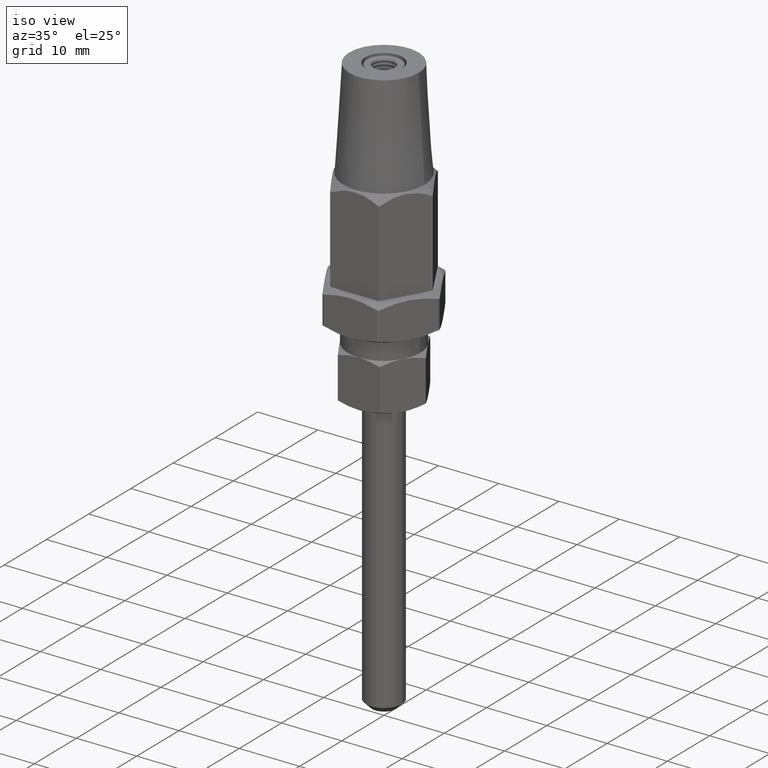
[diagram: clean part render]
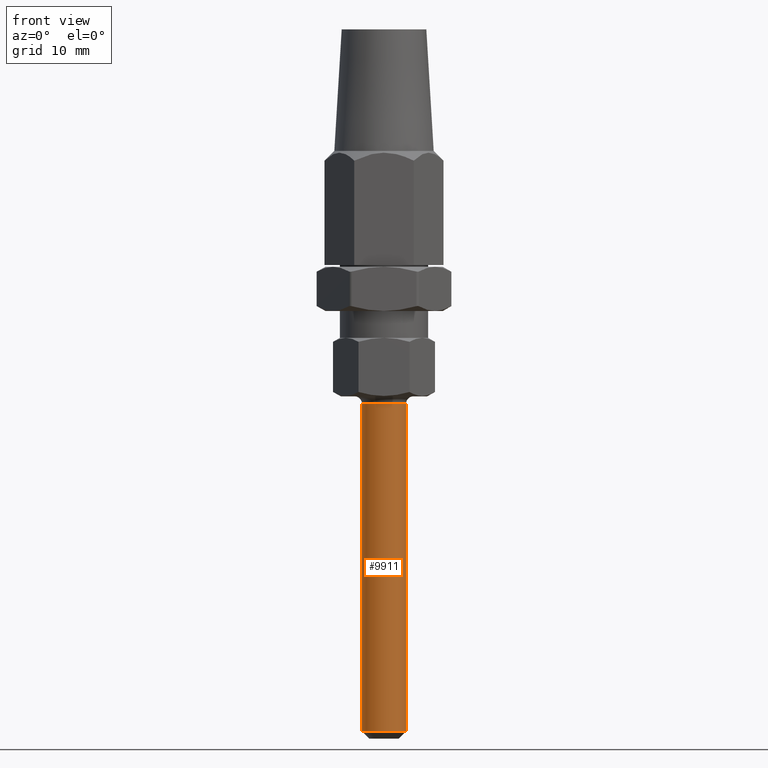
[diagram: tour spotlight — one face highlighted and labeled with its STEP entity id]
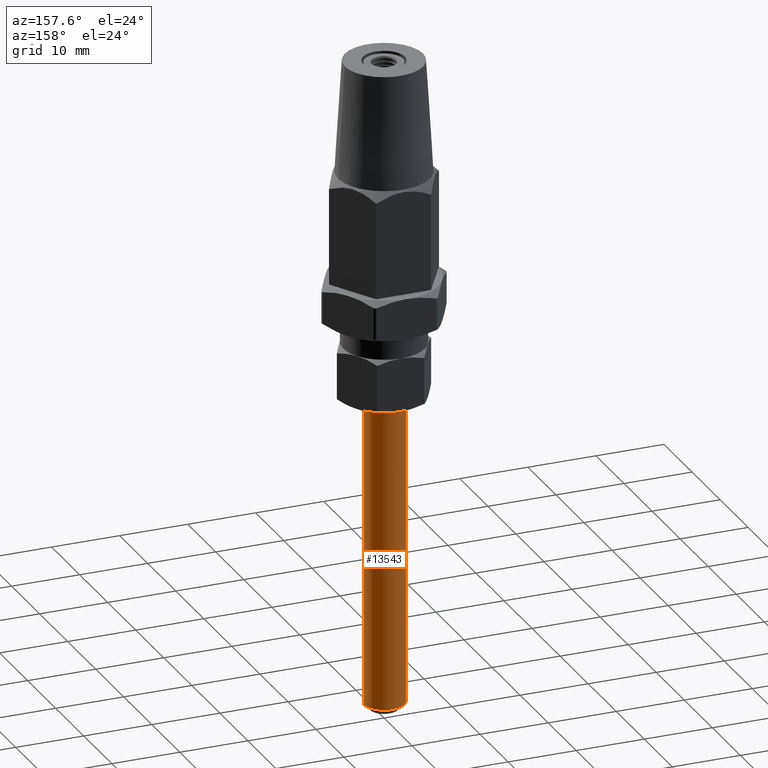
[diagram: tour spotlight — one face highlighted and labeled with its STEP entity id]
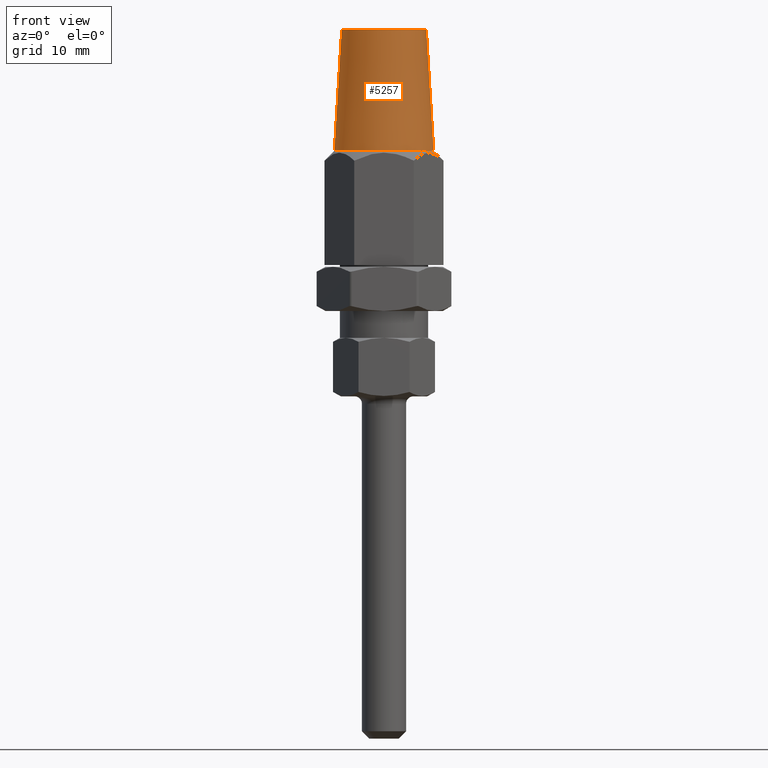
[diagram: tour spotlight — one face highlighted and labeled with its STEP entity id]
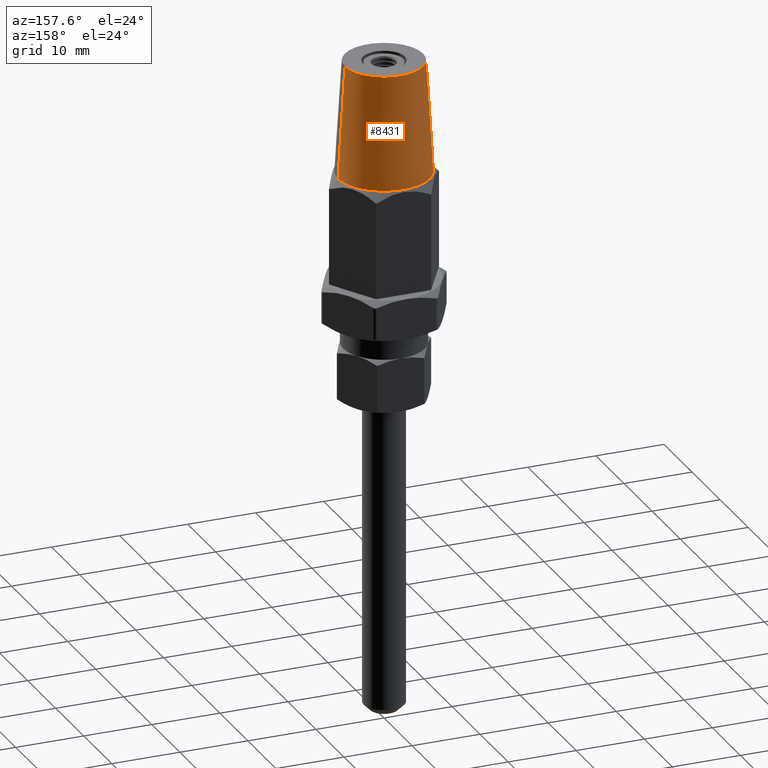
[diagram: tour spotlight — one face highlighted and labeled with its STEP entity id]
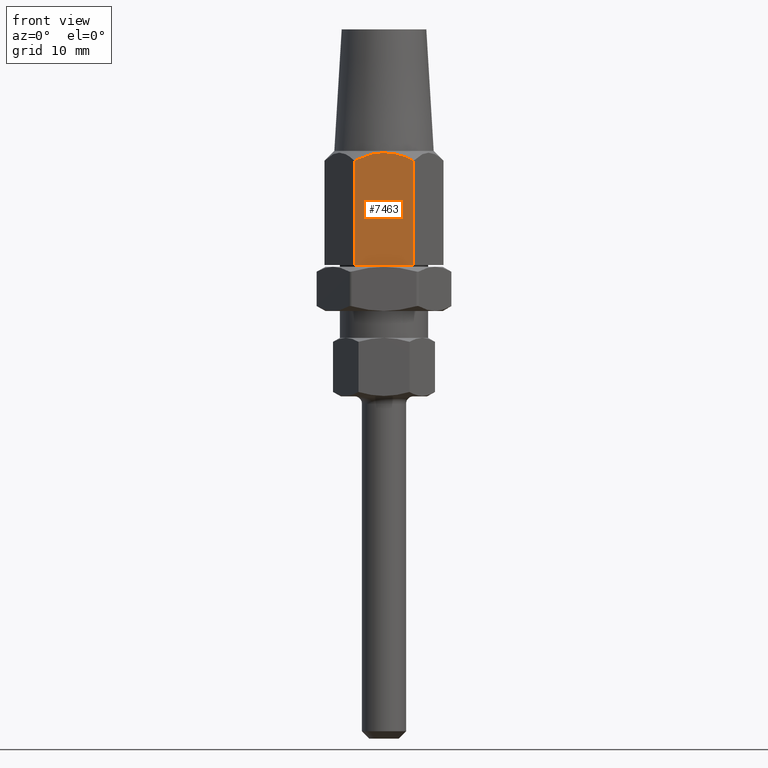
[diagram: tour spotlight — one face highlighted and labeled with its STEP entity id]
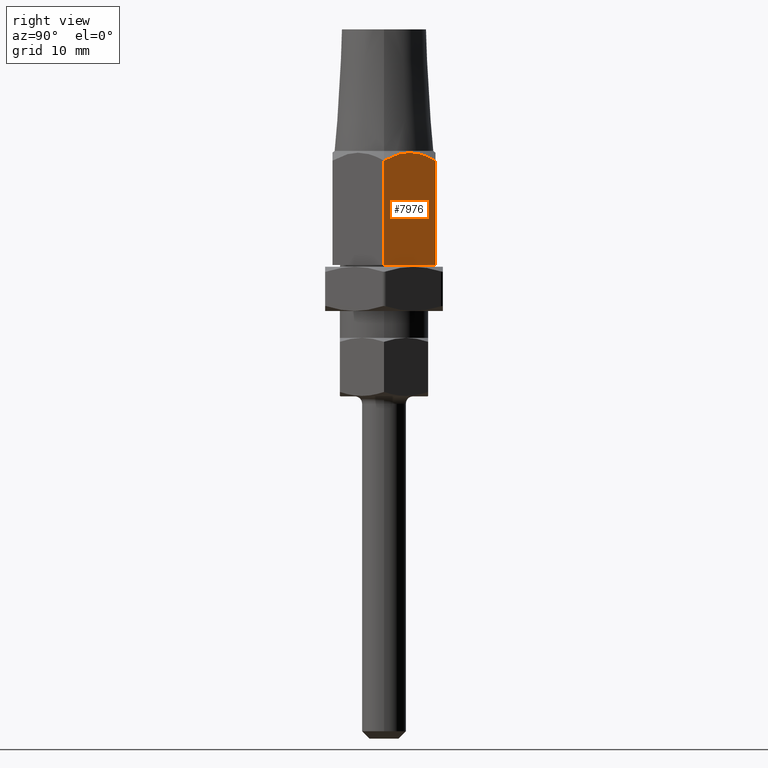
[diagram: tour spotlight — one face highlighted and labeled with its STEP entity id]
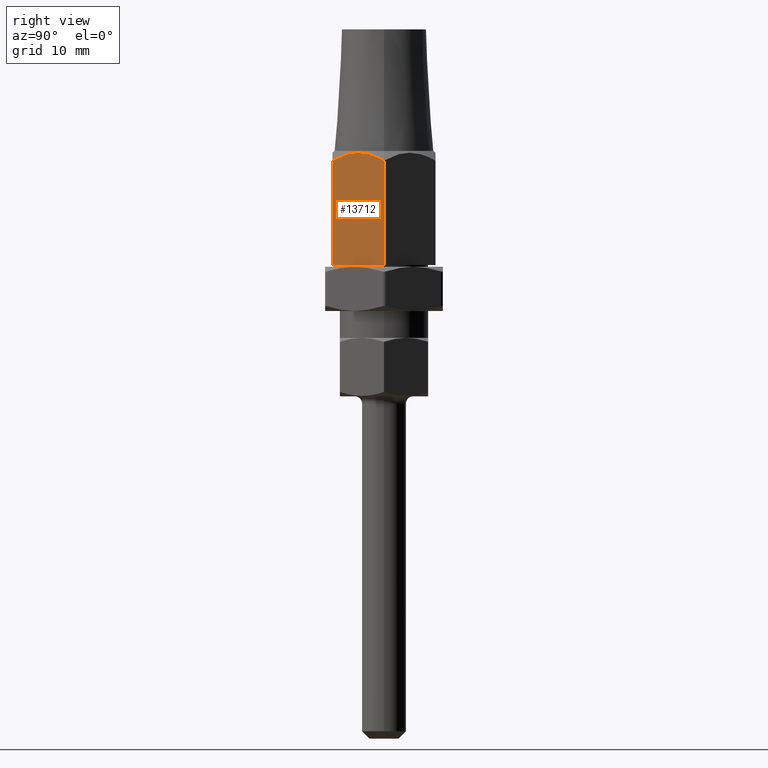
[diagram: tour spotlight — one face highlighted and labeled with its STEP entity id]
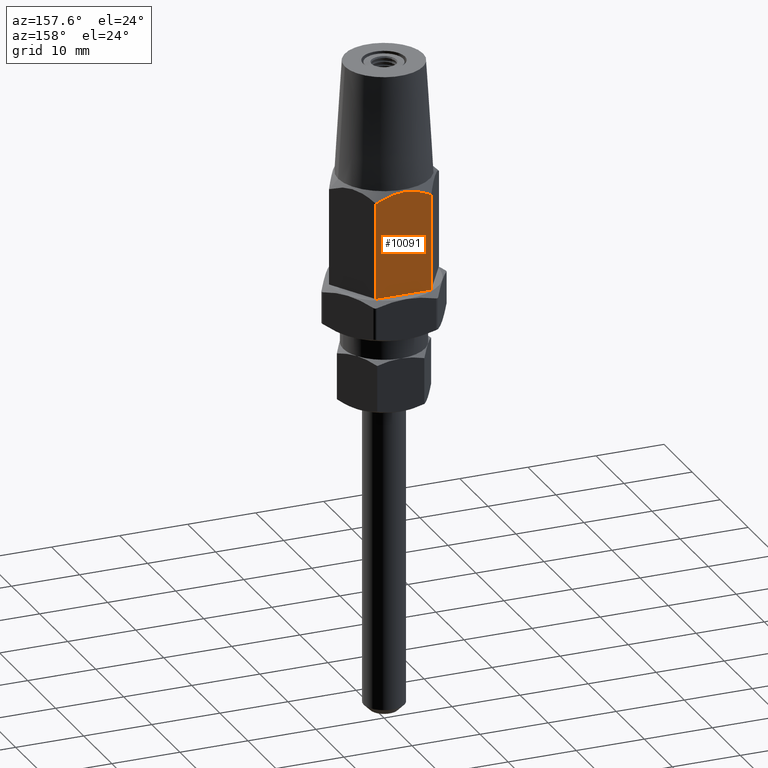
[diagram: tour spotlight — one face highlighted and labeled with its STEP entity id]
A machine part: a face-by-face anatomy tour. The part has 528 B-rep faces; the first image is the clean iso view, then the 8 largest visible faces are spotlighted one at a time (largest first), each with its STEP entity span.

Face 1 — front view, entity #9911. In plain terms, the highlighted cylindrical surface (edge-blend (fillet) strip) has radius 3 mm, axis along (0, 0, 1).
Definition (entity closure, byte-faithful):
#62 = ORIENTED_EDGE ( 'NONE', *, *, #207, .T. ) ;
#207 = EDGE_CURVE ( 'NONE', #5870, #8700, #6769, .T. ) ;
#555 = CIRCLE ( 'NONE', #11966, 3.000000000000000400 ) ;
#1002 = CARTESIAN_POINT ( 'NONE',  ( 3.000000000000000400, 0.0000000000000000000, -50.50000000000000000 ) ) ;
#1553 = DIRECTION ( 'NONE',  ( -1.000000000000000000, 0.0000000000000000000, 0.0000000000000000000 ) ) ;
#2115 = DIRECTION ( 'NONE',  ( -0.0000000000000000000, -0.0000000000000000000, 1.000000000000000000 ) ) ;
#2518 = EDGE_CURVE ( 'NONE', #6206, #7455, #555, .T. ) ;
#2835 = AXIS2_PLACEMENT_3D ( 'NONE', #10318, #2115, #9179 ) ;
#2839 = VECTOR ( 'NONE', #13884, 1000.000000000000000 ) ;
#4160 = CARTESIAN_POINT ( 'NONE',  ( 0.0000000000000000000, 0.0000000000000000000, -49.50000000000003600 ) ) ;
#5062 = AXIS2_PLACEMENT_3D ( 'NONE', #5836, #5710, #12508 ) ;
#5214 = DIRECTION ( 'NONE',  ( -0.0000000000000000000, -0.0000000000000000000, 1.000000000000000000 ) ) ;
#5460 = DIRECTION ( 'NONE',  ( 0.0000000000000000000, 0.0000000000000000000, 1.000000000000000000 ) ) ;
#5710 = DIRECTION ( 'NONE',  ( -0.0000000000000000000, 0.0000000000000000000, -1.000000000000000000 ) ) ;
#5836 = CARTESIAN_POINT ( 'NONE',  ( 0.0000000000000000000, 0.0000000000000000000, -5.000000000000004400 ) ) ;
#5870 = VERTEX_POINT ( 'NONE', #9359 ) ;
#5992 = CARTESIAN_POINT ( 'NONE',  ( 3.000000000000000400, 0.0000000000000000000, -49.50000000000003600 ) ) ;
#6163 = CARTESIAN_POINT ( 'NONE',  ( -3.000000000000000400, 3.673940397442059900E-016, -5.000000000000004400 ) ) ;
#6206 = VERTEX_POINT ( 'NONE', #12907 ) ;
#6365 = ORIENTED_EDGE ( 'NONE', *, *, #2518, .T. ) ;
#6769 = CIRCLE ( 'NONE', #5062, 3.000000000000000400 ) ;
#7455 = VERTEX_POINT ( 'NONE', #5992 ) ;
#8274 = FACE_OUTER_BOUND ( 'NONE', #15623, .T. ) ;
#8503 = ORIENTED_EDGE ( 'NONE', *, *, #14821, .T. ) ;
#8526 = CARTESIAN_POINT ( 'NONE',  ( -3.000000000000000400, 3.673940397442059900E-016, -50.50000000000000000 ) ) ;
#8700 = VERTEX_POINT ( 'NONE', #6163 ) ;
#8961 = CYLINDRICAL_SURFACE ( 'NONE', #2835, 3.000000000000000400 ) ;
#9179 = DIRECTION ( 'NONE',  ( 1.000000000000000000, 0.0000000000000000000, 0.0000000000000000000 ) ) ;
#9359 = CARTESIAN_POINT ( 'NONE',  ( 3.000000000000000400, 0.0000000000000000000, -5.000000000000004400 ) ) ;
#9911 = ADVANCED_FACE ( 'NONE', ( #8274 ), #8961, .T. ) ;
#10318 = CARTESIAN_POINT ( 'NONE',  ( 0.0000000000000000000, 0.0000000000000000000, -50.50000000000000000 ) ) ;
#11595 = ORIENTED_EDGE ( 'NONE', *, *, #15005, .F. ) ;
#11966 = AXIS2_PLACEMENT_3D ( 'NONE', #4160, #5460, #1553 ) ;
#12508 = DIRECTION ( 'NONE',  ( 1.000000000000000000, 0.0000000000000000000, 0.0000000000000000000 ) ) ;
#12907 = CARTESIAN_POINT ( 'NONE',  ( -3.000000000000000400, 3.673940397442059900E-016, -49.50000000000003600 ) ) ;
#13354 = LINE ( 'NONE', #1002, #15035 ) ;
#13884 = DIRECTION ( 'NONE',  ( -0.0000000000000000000, -0.0000000000000000000, 1.000000000000000000 ) ) ;
#14821 = EDGE_CURVE ( 'NONE', #7455, #5870, #13354, .T. ) ;
#15005 = EDGE_CURVE ( 'NONE', #6206, #8700, #17381, .T. ) ;
#15035 = VECTOR ( 'NONE', #5214, 1000.000000000000000 ) ;
#15623 = EDGE_LOOP ( 'NONE', ( #11595, #6365, #8503, #62 ) ) ;
#17381 = LINE ( 'NONE', #8526, #2839 ) ;

Face 2 — auxiliary view, entity #13543. In plain terms, the highlighted cylindrical surface (edge-blend (fillet) strip) has radius 3 mm, axis along (0, 0, 1).
Definition (entity closure, byte-faithful):
#752 = AXIS2_PLACEMENT_3D ( 'NONE', #12088, #947, #10541 ) ;
#947 = DIRECTION ( 'NONE',  ( 0.0000000000000000000, 0.0000000000000000000, 1.000000000000000000 ) ) ;
#970 = CIRCLE ( 'NONE', #14382, 3.000000000000000400 ) ;
#1002 = CARTESIAN_POINT ( 'NONE',  ( 3.000000000000000400, 0.0000000000000000000, -50.50000000000000000 ) ) ;
#1648 = ORIENTED_EDGE ( 'NONE', *, *, #3370, .T. ) ;
#2508 = DIRECTION ( 'NONE',  ( -0.0000000000000000000, -0.0000000000000000000, 1.000000000000000000 ) ) ;
#2839 = VECTOR ( 'NONE', #13884, 1000.000000000000000 ) ;
#3370 = EDGE_CURVE ( 'NONE', #8700, #5870, #970, .T. ) ;
#3644 = CIRCLE ( 'NONE', #752, 3.000000000000000400 ) ;
#5008 = FACE_OUTER_BOUND ( 'NONE', #12389, .T. ) ;
#5214 = DIRECTION ( 'NONE',  ( -0.0000000000000000000, -0.0000000000000000000, 1.000000000000000000 ) ) ;
#5870 = VERTEX_POINT ( 'NONE', #9359 ) ;
#5992 = CARTESIAN_POINT ( 'NONE',  ( 3.000000000000000400, 0.0000000000000000000, -49.50000000000003600 ) ) ;
#6163 = CARTESIAN_POINT ( 'NONE',  ( -3.000000000000000400, 3.673940397442059900E-016, -5.000000000000004400 ) ) ;
#6206 = VERTEX_POINT ( 'NONE', #12907 ) ;
#6697 = CYLINDRICAL_SURFACE ( 'NONE', #12411, 3.000000000000000400 ) ;
#6893 = ORIENTED_EDGE ( 'NONE', *, *, #9281, .T. ) ;
#7455 = VERTEX_POINT ( 'NONE', #5992 ) ;
#8526 = CARTESIAN_POINT ( 'NONE',  ( -3.000000000000000400, 3.673940397442059900E-016, -50.50000000000000000 ) ) ;
#8700 = VERTEX_POINT ( 'NONE', #6163 ) ;
#8860 = ORIENTED_EDGE ( 'NONE', *, *, #14821, .F. ) ;
#8934 = ORIENTED_EDGE ( 'NONE', *, *, #15005, .T. ) ;
#9281 = EDGE_CURVE ( 'NONE', #7455, #6206, #3644, .T. ) ;
#9359 = CARTESIAN_POINT ( 'NONE',  ( 3.000000000000000400, 0.0000000000000000000, -5.000000000000004400 ) ) ;
#9572 = CARTESIAN_POINT ( 'NONE',  ( 0.0000000000000000000, 0.0000000000000000000, -5.000000000000004400 ) ) ;
#9628 = DIRECTION ( 'NONE',  ( 1.000000000000000000, 0.0000000000000000000, 0.0000000000000000000 ) ) ;
#10541 = DIRECTION ( 'NONE',  ( -1.000000000000000000, 0.0000000000000000000, 0.0000000000000000000 ) ) ;
#12088 = CARTESIAN_POINT ( 'NONE',  ( 0.0000000000000000000, 0.0000000000000000000, -49.50000000000003600 ) ) ;
#12099 = DIRECTION ( 'NONE',  ( 1.000000000000000000, 0.0000000000000000000, 0.0000000000000000000 ) ) ;
#12389 = EDGE_LOOP ( 'NONE', ( #6893, #8934, #1648, #8860 ) ) ;
#12411 = AXIS2_PLACEMENT_3D ( 'NONE', #15066, #2508, #12099 ) ;
#12907 = CARTESIAN_POINT ( 'NONE',  ( -3.000000000000000400, 3.673940397442059900E-016, -49.50000000000003600 ) ) ;
#13354 = LINE ( 'NONE', #1002, #15035 ) ;
#13543 = ADVANCED_FACE ( 'NONE', ( #5008 ), #6697, .T. ) ;
#13884 = DIRECTION ( 'NONE',  ( -0.0000000000000000000, -0.0000000000000000000, 1.000000000000000000 ) ) ;
#14382 = AXIS2_PLACEMENT_3D ( 'NONE', #9572, #15132, #9628 ) ;
#14821 = EDGE_CURVE ( 'NONE', #7455, #5870, #13354, .T. ) ;
#15005 = EDGE_CURVE ( 'NONE', #6206, #8700, #17381, .T. ) ;
#15035 = VECTOR ( 'NONE', #5214, 1000.000000000000000 ) ;
#15066 = CARTESIAN_POINT ( 'NONE',  ( 0.0000000000000000000, 0.0000000000000000000, -50.50000000000000000 ) ) ;
#15132 = DIRECTION ( 'NONE',  ( -0.0000000000000000000, 0.0000000000000000000, -1.000000000000000000 ) ) ;
#17381 = LINE ( 'NONE', #8526, #2839 ) ;

Face 3 — front view, entity #5257. In plain terms, the highlighted conical surface has half-angle 3.468 deg.
Definition (entity closure, byte-faithful):
#819 = ORIENTED_EDGE ( 'NONE', *, *, #15924, .F. ) ;
#941 = DIRECTION ( 'NONE',  ( -1.092877767060727900E-016, -0.0000000000000000000, -1.000000000000000000 ) ) ;
#1385 = CARTESIAN_POINT ( 'NONE',  ( -5.749999999999998200, 0.0000000000000000000, 32.00000000000000000 ) ) ;
#2054 = CARTESIAN_POINT ( 'NONE',  ( 5.750000000000001800, 7.654042494670957600E-016, 32.00000000000000000 ) ) ;
#2384 = DIRECTION ( 'NONE',  ( -1.000000000000000000, 0.0000000000000000000, 0.0000000000000000000 ) ) ;
#2549 = EDGE_CURVE ( 'NONE', #11463, #16426, #6751, .T. ) ;
#2783 = DIRECTION ( 'NONE',  ( -0.06049506040189051700, 0.0000000000000000000, -0.9981684966311907800 ) ) ;
#2949 = CARTESIAN_POINT ( 'NONE',  ( -5.749999999999998200, 0.0000000000000000000, 32.00000000000000000 ) ) ;
#3095 = EDGE_CURVE ( 'NONE', #12712, #11463, #6951, .T. ) ;
#3837 = VECTOR ( 'NONE', #9719, 1000.000000000000200 ) ;
#3918 = CARTESIAN_POINT ( 'NONE',  ( -6.750000000000000900, 0.0000000000000000000, 15.50000000000000000 ) ) ;
#4001 = VECTOR ( 'NONE', #2783, 1000.000000000000200 ) ;
#4234 = VERTEX_POINT ( 'NONE', #12270 ) ;
#4640 = CONICAL_SURFACE ( 'NONE', #8999, 5.750000000000000000, 0.06053201978210719800 ) ;
#5144 = CARTESIAN_POINT ( 'NONE',  ( 1.728549981472478400E-015, 0.0000000000000000000, 32.00000000000000000 ) ) ;
#5257 = ADVANCED_FACE ( 'NONE', ( #14719 ), #4640, .T. ) ;
#5724 = ORIENTED_EDGE ( 'NONE', *, *, #3095, .T. ) ;
#6669 = AXIS2_PLACEMENT_3D ( 'NONE', #7449, #8785, #9981 ) ;
#6688 = ORIENTED_EDGE ( 'NONE', *, *, #9430, .F. ) ;
#6751 = LINE ( 'NONE', #2949, #4001 ) ;
#6950 = CARTESIAN_POINT ( 'NONE',  ( 5.750000000000001800, 7.041719095097280900E-016, 32.00000000000000000 ) ) ;
#6951 = CIRCLE ( 'NONE', #6669, 5.750000000000000000 ) ;
#7111 = CIRCLE ( 'NONE', #11748, 6.750000000000000900 ) ;
#7394 = CARTESIAN_POINT ( 'NONE',  ( -7.469833417772264100E-017, 0.0000000000000000000, 15.50000000000000000 ) ) ;
#7449 = CARTESIAN_POINT ( 'NONE',  ( 1.728549981472478400E-015, 0.0000000000000000000, 32.00000000000000000 ) ) ;
#8785 = DIRECTION ( 'NONE',  ( -1.092877767060727900E-016, -0.0000000000000000000, -1.000000000000000000 ) ) ;
#8791 = DIRECTION ( 'NONE',  ( -1.000000000000000000, 0.0000000000000000000, 0.0000000000000000000 ) ) ;
#8999 = AXIS2_PLACEMENT_3D ( 'NONE', #5144, #941, #2384 ) ;
#9430 = EDGE_CURVE ( 'NONE', #12712, #4234, #16868, .T. ) ;
#9719 = DIRECTION ( 'NONE',  ( 0.06049506040189029500, 7.408508208540088300E-018, -0.9981684966311907800 ) ) ;
#9981 = DIRECTION ( 'NONE',  ( -1.000000000000000000, 0.0000000000000000000, 0.0000000000000000000 ) ) ;
#11463 = VERTEX_POINT ( 'NONE', #1385 ) ;
#11748 = AXIS2_PLACEMENT_3D ( 'NONE', #7394, #16977, #8791 ) ;
#12270 = CARTESIAN_POINT ( 'NONE',  ( 6.750000000000000900, 8.266365894244635300E-016, 15.50000000000000000 ) ) ;
#12712 = VERTEX_POINT ( 'NONE', #2054 ) ;
#13519 = EDGE_LOOP ( 'NONE', ( #6688, #5724, #17530, #819 ) ) ;
#14719 = FACE_OUTER_BOUND ( 'NONE', #13519, .T. ) ;
#15924 = EDGE_CURVE ( 'NONE', #4234, #16426, #7111, .T. ) ;
#16426 = VERTEX_POINT ( 'NONE', #3918 ) ;
#16868 = LINE ( 'NONE', #6950, #3837 ) ;
#16977 = DIRECTION ( 'NONE',  ( 4.819247366304686200E-018, -0.0000000000000000000, -1.000000000000000000 ) ) ;
#17530 = ORIENTED_EDGE ( 'NONE', *, *, #2549, .T. ) ;

Face 4 — auxiliary view, entity #8431. In plain terms, the highlighted conical surface has half-angle 3.468 deg.
Definition (entity closure, byte-faithful):
#628 = CONICAL_SURFACE ( 'NONE', #10856, 5.750000000000000000, 0.06053201978210719800 ) ;
#1385 = CARTESIAN_POINT ( 'NONE',  ( -5.749999999999998200, 0.0000000000000000000, 32.00000000000000000 ) ) ;
#2054 = CARTESIAN_POINT ( 'NONE',  ( 5.750000000000001800, 7.654042494670957600E-016, 32.00000000000000000 ) ) ;
#2549 = EDGE_CURVE ( 'NONE', #11463, #16426, #6751, .T. ) ;
#2783 = DIRECTION ( 'NONE',  ( -0.06049506040189051700, 0.0000000000000000000, -0.9981684966311907800 ) ) ;
#2949 = CARTESIAN_POINT ( 'NONE',  ( -5.749999999999998200, 0.0000000000000000000, 32.00000000000000000 ) ) ;
#3503 = AXIS2_PLACEMENT_3D ( 'NONE', #13299, #5073, #7800 ) ;
#3837 = VECTOR ( 'NONE', #9719, 1000.000000000000200 ) ;
#3918 = CARTESIAN_POINT ( 'NONE',  ( -6.750000000000000900, 0.0000000000000000000, 15.50000000000000000 ) ) ;
#4001 = VECTOR ( 'NONE', #2783, 1000.000000000000200 ) ;
#4234 = VERTEX_POINT ( 'NONE', #12270 ) ;
#5073 = DIRECTION ( 'NONE',  ( -1.092877767060727900E-016, -0.0000000000000000000, -1.000000000000000000 ) ) ;
#5320 = EDGE_CURVE ( 'NONE', #11463, #12712, #15545, .T. ) ;
#6462 = ORIENTED_EDGE ( 'NONE', *, *, #9430, .T. ) ;
#6751 = LINE ( 'NONE', #2949, #4001 ) ;
#6950 = CARTESIAN_POINT ( 'NONE',  ( 5.750000000000001800, 7.041719095097280900E-016, 32.00000000000000000 ) ) ;
#7785 = DIRECTION ( 'NONE',  ( -1.000000000000000000, 0.0000000000000000000, 0.0000000000000000000 ) ) ;
#7800 = DIRECTION ( 'NONE',  ( -1.000000000000000000, 0.0000000000000000000, 0.0000000000000000000 ) ) ;
#8431 = ADVANCED_FACE ( 'NONE', ( #12857 ), #628, .T. ) ;
#9329 = CIRCLE ( 'NONE', #11259, 6.750000000000000900 ) ;
#9430 = EDGE_CURVE ( 'NONE', #12712, #4234, #16868, .T. ) ;
#9719 = DIRECTION ( 'NONE',  ( 0.06049506040189029500, 7.408508208540088300E-018, -0.9981684966311907800 ) ) ;
#10103 = ORIENTED_EDGE ( 'NONE', *, *, #2549, .F. ) ;
#10856 = AXIS2_PLACEMENT_3D ( 'NONE', #12466, #13906, #7785 ) ;
#11259 = AXIS2_PLACEMENT_3D ( 'NONE', #13626, #12177, #13570 ) ;
#11463 = VERTEX_POINT ( 'NONE', #1385 ) ;
#11734 = EDGE_CURVE ( 'NONE', #16426, #4234, #9329, .T. ) ;
#12162 = ORIENTED_EDGE ( 'NONE', *, *, #11734, .F. ) ;
#12177 = DIRECTION ( 'NONE',  ( 4.819247366304686200E-018, -0.0000000000000000000, -1.000000000000000000 ) ) ;
#12270 = CARTESIAN_POINT ( 'NONE',  ( 6.750000000000000900, 8.266365894244635300E-016, 15.50000000000000000 ) ) ;
#12466 = CARTESIAN_POINT ( 'NONE',  ( 1.728549981472478400E-015, 0.0000000000000000000, 32.00000000000000000 ) ) ;
#12712 = VERTEX_POINT ( 'NONE', #2054 ) ;
#12857 = FACE_OUTER_BOUND ( 'NONE', #15181, .T. ) ;
#13299 = CARTESIAN_POINT ( 'NONE',  ( 1.728549981472478400E-015, 0.0000000000000000000, 32.00000000000000000 ) ) ;
#13570 = DIRECTION ( 'NONE',  ( -1.000000000000000000, 0.0000000000000000000, 0.0000000000000000000 ) ) ;
#13626 = CARTESIAN_POINT ( 'NONE',  ( -7.469833417772264100E-017, 0.0000000000000000000, 15.50000000000000000 ) ) ;
#13906 = DIRECTION ( 'NONE',  ( -1.092877767060727900E-016, -0.0000000000000000000, -1.000000000000000000 ) ) ;
#15181 = EDGE_LOOP ( 'NONE', ( #17345, #6462, #12162, #10103 ) ) ;
#15545 = CIRCLE ( 'NONE', #3503, 5.750000000000000000 ) ;
#16426 = VERTEX_POINT ( 'NONE', #3918 ) ;
#16868 = LINE ( 'NONE', #6950, #3837 ) ;
#17345 = ORIENTED_EDGE ( 'NONE', *, *, #5320, .T. ) ;

Face 5 — front view, entity #7463. In plain terms, the highlighted planar face has unit normal (-0, 1, 0).
Definition (entity closure, byte-faithful):
#7 = EDGE_CURVE ( 'NONE', #16458, #1999, #14922, .T. ) ;
#194 = ORIENTED_EDGE ( 'NONE', *, *, #8818, .T. ) ;
#852 = DIRECTION ( 'NONE',  ( -1.073081856240827700E-016, 1.000000000000000000, 0.0000000000000000000 ) ) ;
#1185 = CARTESIAN_POINT ( 'NONE',  ( -0.7060945810486756200, -7.000000000000000000, 15.21668285682551400 ) ) ;
#1204 = B_SPLINE_CURVE_WITH_KNOTS ( 'NONE', 3,
 ( #16326, #2819, #16207, #5440, #6856, #1185, #17570, #2638, #16435, #9625, #11016, #4192, #13782, #9403, #9466 ),
 .UNSPECIFIED., .F., .F.,
 ( 4, 2, 1, 2, 2, 2, 2, 4 ),
 ( 0.007659788823902156400, 0.009747788757311847200, 0.01079178872401669200, 0.01131378870736911500, 0.01183578869072153700, 0.01392378862413122500, 0.01496778859083607200, 0.01601178855754091500 ),
 .UNSPECIFIED. ) ;
#1999 = VERTEX_POINT ( 'NONE', #3014 ) ;
#2638 = CARTESIAN_POINT ( 'NONE',  ( -0.1739434756569289400, -6.999999999999999100, 15.25008118836726300 ) ) ;
#2819 = CARTESIAN_POINT ( 'NONE',  ( -3.413793102994862900, -7.000000000000000000, 14.48092562201150600 ) ) ;
#3014 = CARTESIAN_POINT ( 'NONE',  ( 4.041451884327381400, -6.999999999999999100, 0.0000000000000000000 ) ) ;
#3264 = PLANE ( 'NONE',  #8771 ) ;
#4135 = CARTESIAN_POINT ( 'NONE',  ( -4.041451884327382300, -7.000000000000000000, 0.0000000000000000000 ) ) ;
#4192 = CARTESIAN_POINT ( 'NONE',  ( 2.756164218381834000, -6.999999999999998200, 14.73288952018618400 ) ) ;
#5440 = CARTESIAN_POINT ( 'NONE',  ( -1.743645236948380600, -6.999999999999999100, 15.04333056936472900 ) ) ;
#5486 = DIRECTION ( 'NONE',  ( 1.000000000000000000, 1.073081856240827700E-016, 0.0000000000000000000 ) ) ;
#5664 = VECTOR ( 'NONE', #8013, 1000.000000000000000 ) ;
#6373 = ORIENTED_EDGE ( 'NONE', *, *, #10366, .F. ) ;
#6717 = CARTESIAN_POINT ( 'NONE',  ( 4.041451884327382300, -6.999999999999999100, 14.16709623134525500 ) ) ;
#6856 = CARTESIAN_POINT ( 'NONE',  ( -1.231327931917445500, -6.999999999999999100, 15.15717178989126200 ) ) ;
#7268 = FACE_OUTER_BOUND ( 'NONE', #15345, .T. ) ;
#7463 = ADVANCED_FACE ( 'NONE', ( #7268 ), #3264, .F. ) ;
#8013 = DIRECTION ( 'NONE',  ( -0.0000000000000000000, -0.0000000000000000000, -1.000000000000000000 ) ) ;
#8317 = VECTOR ( 'NONE', #9569, 1000.000000000000000 ) ;
#8771 = AXIS2_PLACEMENT_3D ( 'NONE', #17233, #852, #13321 ) ;
#8818 = EDGE_CURVE ( 'NONE', #16054, #16458, #10508, .T. ) ;
#8889 = LINE ( 'NONE', #12350, #5664 ) ;
#9403 = CARTESIAN_POINT ( 'NONE',  ( 3.728693633617582700, -6.999999999999998200, 14.32347535670015600 ) ) ;
#9466 = CARTESIAN_POINT ( 'NONE',  ( 4.041451884327382300, -6.999999999999999100, 14.16709623134525500 ) ) ;
#9569 = DIRECTION ( 'NONE',  ( -0.0000000000000000000, -0.0000000000000000000, -1.000000000000000000 ) ) ;
#9625 = CARTESIAN_POINT ( 'NONE',  ( 1.403040549276751900, -6.999999999999999100, 15.14037665000912200 ) ) ;
#10366 = EDGE_CURVE ( 'NONE', #16054, #12439, #1204, .T. ) ;
#10498 = ORIENTED_EDGE ( 'NONE', *, *, #7, .T. ) ;
#10508 = LINE ( 'NONE', #14581, #8317 ) ;
#10868 = VECTOR ( 'NONE', #5486, 1000.000000000000000 ) ;
#10953 = CARTESIAN_POINT ( 'NONE',  ( -4.041451884327382300, -7.000000000000000000, 14.16709623134525300 ) ) ;
#11016 = CARTESIAN_POINT ( 'NONE',  ( 2.419327140801989600, -6.999999999999996400, 14.85083118430345000 ) ) ;
#11094 = ORIENTED_EDGE ( 'NONE', *, *, #11755, .F. ) ;
#11755 = EDGE_CURVE ( 'NONE', #12439, #1999, #8889, .T. ) ;
#12350 = CARTESIAN_POINT ( 'NONE',  ( 4.041451884327381400, -6.999999999999999100, 15.50000000000000000 ) ) ;
#12439 = VERTEX_POINT ( 'NONE', #6717 ) ;
#13321 = DIRECTION ( 'NONE',  ( -1.000000000000000000, -1.073081856240827700E-016, 0.0000000000000000000 ) ) ;
#13782 = CARTESIAN_POINT ( 'NONE',  ( 3.409925670955347200, -6.999999999999999100, 14.46937651287003300 ) ) ;
#14581 = CARTESIAN_POINT ( 'NONE',  ( -4.041451884327382300, -7.000000000000000000, 15.50000000000000000 ) ) ;
#14922 = LINE ( 'NONE', #4135, #10868 ) ;
#15345 = EDGE_LOOP ( 'NONE', ( #6373, #194, #10498, #11094 ) ) ;
#16054 = VERTEX_POINT ( 'NONE', #10953 ) ;
#16207 = CARTESIAN_POINT ( 'NONE',  ( -2.753980363981631400, -7.000000000000000000, 14.75549867398255800 ) ) ;
#16326 = CARTESIAN_POINT ( 'NONE',  ( -4.041451884327382300, -7.000000000000000000, 14.16709623134525300 ) ) ;
#16435 = CARTESIAN_POINT ( 'NONE',  ( 0.7119595944832466400, -6.999999999999996400, 15.24967150400800800 ) ) ;
#16447 = CARTESIAN_POINT ( 'NONE',  ( -4.041451884327382300, -7.000000000000000000, 0.0000000000000000000 ) ) ;
#16458 = VERTEX_POINT ( 'NONE', #16447 ) ;
#17233 = CARTESIAN_POINT ( 'NONE',  ( -4.041451884327382300, -7.000000000000000000, 15.50000000000000000 ) ) ;
#17570 = CARTESIAN_POINT ( 'NONE',  ( -0.3528411978782944300, -7.000000000000000000, 15.24332622494767400 ) ) ;

Face 6 — right view, entity #7976. In plain terms, the highlighted planar face has unit normal (-0.866, -0.5, 0).
Definition (entity closure, byte-faithful):
#798 = CARTESIAN_POINT ( 'NONE',  ( 8.082903768654761100, 1.243450658712304500E-016, 15.50000000000000000 ) ) ;
#1062 = CARTESIAN_POINT ( 'NONE',  ( 6.424974264048290500, 2.871618137345898000, 15.22088044662090000 ) ) ;
#2394 = CARTESIAN_POINT ( 'NONE',  ( 4.686123944019258600, 5.883395238393586800, 14.75707473685713100 ) ) ;
#3099 = DIRECTION ( 'NONE',  ( -0.5000000000000003300, 0.8660254037844384900, 0.0000000000000000000 ) ) ;
#3323 = EDGE_CURVE ( 'NONE', #13924, #10731, #12894, .T. ) ;
#4071 = ORIENTED_EDGE ( 'NONE', *, *, #5619, .T. ) ;
#4220 = LINE ( 'NONE', #798, #9769 ) ;
#5375 = CARTESIAN_POINT ( 'NONE',  ( 4.041451884327377000, 7.000000000000000000, 15.50000000000000000 ) ) ;
#5470 = CARTESIAN_POINT ( 'NONE',  ( 4.041451884327377900, 7.000000000000000000, 14.16709623134525700 ) ) ;
#5619 = EDGE_CURVE ( 'NONE', #13924, #11017, #4220, .T. ) ;
#6215 = PLANE ( 'NONE',  #11202 ) ;
#6456 = CARTESIAN_POINT ( 'NONE',  ( 8.082903768654761100, 8.379888521085749500E-017, 14.16709623134525500 ) ) ;
#6475 = VECTOR ( 'NONE', #9880, 1000.000000000000000 ) ;
#6605 = CARTESIAN_POINT ( 'NONE',  ( 8.082903768654761100, 8.379888521085749500E-017, 14.16709623134525500 ) ) ;
#6807 = LINE ( 'NONE', #13876, #17305 ) ;
#7806 = CARTESIAN_POINT ( 'NONE',  ( 5.370024455733903000, 4.698844804781470200, 15.14464026218350100 ) ) ;
#7976 = ADVANCED_FACE ( 'NONE', ( #14584 ), #6215, .F. ) ;
#8288 = ORIENTED_EDGE ( 'NONE', *, *, #3323, .F. ) ;
#9149 = DIRECTION ( 'NONE',  ( -0.8660254037844384900, -0.5000000000000003300, 0.0000000000000000000 ) ) ;
#9217 = CARTESIAN_POINT ( 'NONE',  ( 7.767134998403879100, 0.5469275535180734300, 14.48286500159613500 ) ) ;
#9224 = EDGE_LOOP ( 'NONE', ( #8288, #4071, #15733, #16676 ) ) ;
#9273 = CARTESIAN_POINT ( 'NONE',  ( 6.942582451207002200, 1.975094458773389200, 15.03905029590963900 ) ) ;
#9478 = EDGE_CURVE ( 'NONE', #11017, #13278, #6807, .T. ) ;
#9769 = VECTOR ( 'NONE', #15821, 1000.000000000000000 ) ;
#9880 = DIRECTION ( 'NONE',  ( -0.0000000000000000000, -0.0000000000000000000, -1.000000000000000000 ) ) ;
#10117 = LINE ( 'NONE', #5375, #6475 ) ;
#10596 = CARTESIAN_POINT ( 'NONE',  ( 6.772444227986305500, 2.269782505701131800, 15.11557990305788800 ) ) ;
#10731 = VERTEX_POINT ( 'NONE', #5470 ) ;
#11017 = VERTEX_POINT ( 'NONE', #14952 ) ;
#11202 = AXIS2_PLACEMENT_3D ( 'NONE', #17158, #9149, #11862 ) ;
#11862 = DIRECTION ( 'NONE',  ( 0.5000000000000003300, -0.8660254037844384900, 0.0000000000000000000 ) ) ;
#12894 = B_SPLINE_CURVE_WITH_KNOTS ( 'NONE', 3,
 ( #6456, #9217, #17437, #9273, #10596, #1062, #14669, #13360, #7806, #2394, #14717, #16016 ),
 .UNSPECIFIED., .F., .F.,
 ( 4, 2, 2, 2, 2, 4 ),
 ( 2.544316211737420600E-007, 0.002087583538114674000, 0.003131248091361424200, 0.004174912644608174400, 0.006262241751101676500, 0.008349570857595179500 ),
 .UNSPECIFIED. ) ;
#13278 = VERTEX_POINT ( 'NONE', #15788 ) ;
#13360 = CARTESIAN_POINT ( 'NONE',  ( 5.716808688986271000, 4.098196893524550100, 15.25148396273106100 ) ) ;
#13876 = CARTESIAN_POINT ( 'NONE',  ( 8.082903768654761100, 1.243450658712304500E-016, 0.0000000000000000000 ) ) ;
#13924 = VERTEX_POINT ( 'NONE', #6605 ) ;
#14584 = FACE_OUTER_BOUND ( 'NONE', #9224, .T. ) ;
#14669 = CARTESIAN_POINT ( 'NONE',  ( 6.246021194140706000, 3.181573946596262500, 15.24923430079596400 ) ) ;
#14717 = CARTESIAN_POINT ( 'NONE',  ( 4.359080132198333700, 6.449851736768425600, 14.48472447921633100 ) ) ;
#14952 = CARTESIAN_POINT ( 'NONE',  ( 8.082903768654761100, 1.243450658712304500E-016, 0.0000000000000000000 ) ) ;
#15733 = ORIENTED_EDGE ( 'NONE', *, *, #9478, .T. ) ;
#15788 = CARTESIAN_POINT ( 'NONE',  ( 4.041451884327377000, 7.000000000000000000, 0.0000000000000000000 ) ) ;
#15821 = DIRECTION ( 'NONE',  ( -0.0000000000000000000, -0.0000000000000000000, -1.000000000000000000 ) ) ;
#16016 = CARTESIAN_POINT ( 'NONE',  ( 4.041451884327377900, 7.000000000000000000, 14.16709623134525700 ) ) ;
#16594 = EDGE_CURVE ( 'NONE', #10731, #13278, #10117, .T. ) ;
#16676 = ORIENTED_EDGE ( 'NONE', *, *, #16594, .F. ) ;
#17158 = CARTESIAN_POINT ( 'NONE',  ( 8.082903768654761100, 1.243450658712304500E-016, 15.50000000000000000 ) ) ;
#17305 = VECTOR ( 'NONE', #3099, 1000.000000000000100 ) ;
#17437 = CARTESIAN_POINT ( 'NONE',  ( 7.444243660993555200, 1.106191755236613400, 14.75134614935851700 ) ) ;

Face 7 — right view, entity #13712. In plain terms, the highlighted planar face has unit normal (-0.866, 0.5, 0).
Definition (entity closure, byte-faithful):
#41 = ORIENTED_EDGE ( 'NONE', *, *, #13812, .T. ) ;
#250 = CARTESIAN_POINT ( 'NONE',  ( 4.680111991988584700, -5.893808244763386400, 14.75134614935851100 ) ) ;
#798 = CARTESIAN_POINT ( 'NONE',  ( 8.082903768654761100, 1.243450658712304500E-016, 15.50000000000000000 ) ) ;
#1412 = CARTESIAN_POINT ( 'NONE',  ( 5.351911424995832600, -4.730217494298867300, 15.11557990305789000 ) ) ;
#1999 = VERTEX_POINT ( 'NONE', #3014 ) ;
#2224 = FACE_OUTER_BOUND ( 'NONE', #4998, .T. ) ;
#2878 = CARTESIAN_POINT ( 'NONE',  ( 4.357220654578266100, -6.453072446481926700, 14.48286500159613200 ) ) ;
#3014 = CARTESIAN_POINT ( 'NONE',  ( 4.041451884327381400, -6.999999999999999100, 0.0000000000000000000 ) ) ;
#3656 = DIRECTION ( 'NONE',  ( 0.4999999999999998900, 0.8660254037844387100, 0.0000000000000000000 ) ) ;
#4220 = LINE ( 'NONE', #798, #9769 ) ;
#4321 = CARTESIAN_POINT ( 'NONE',  ( 7.765275520783804500, -0.5501482632315760600, 14.48472447921632700 ) ) ;
#4380 = CARTESIAN_POINT ( 'NONE',  ( 6.407546963995868900, -2.901803106475449500, 15.25148396273106100 ) ) ;
#4715 = DIRECTION ( 'NONE',  ( -0.8660254037844387100, 0.4999999999999999400, 0.0000000000000000000 ) ) ;
#4883 = ORIENTED_EDGE ( 'NONE', *, *, #5619, .F. ) ;
#4998 = EDGE_LOOP ( 'NONE', ( #12613, #15315, #41, #4883 ) ) ;
#5619 = EDGE_CURVE ( 'NONE', #13924, #11017, #4220, .T. ) ;
#5664 = VECTOR ( 'NONE', #8013, 1000.000000000000000 ) ;
#5739 = CARTESIAN_POINT ( 'NONE',  ( 4.041451884327382300, -6.999999999999999100, 14.16709623134525500 ) ) ;
#5900 = PLANE ( 'NONE',  #6892 ) ;
#6605 = CARTESIAN_POINT ( 'NONE',  ( 8.082903768654761100, 8.379888521085749500E-017, 14.16709623134525500 ) ) ;
#6717 = CARTESIAN_POINT ( 'NONE',  ( 4.041451884327382300, -6.999999999999999100, 14.16709623134525500 ) ) ;
#6892 = AXIS2_PLACEMENT_3D ( 'NONE', #11542, #4715, #14300 ) ;
#7051 = CARTESIAN_POINT ( 'NONE',  ( 5.878334458841436600, -3.818426053403738900, 15.24923430079596500 ) ) ;
#8013 = DIRECTION ( 'NONE',  ( -0.0000000000000000000, -0.0000000000000000000, -1.000000000000000000 ) ) ;
#8282 = B_SPLINE_CURVE_WITH_KNOTS ( 'NONE', 3,
 ( #5739, #2878, #250, #12659, #1412, #9746, #7051, #4380, #12586, #16505, #4321, #12470 ),
 .UNSPECIFIED., .F., .F.,
 ( 4, 2, 2, 2, 2, 4 ),
 ( 2.544316211738363500E-007, 0.002087583538114676600, 0.003131248091361426800, 0.004174912644608177000, 0.006262241751101675600, 0.008349570857595176000 ),
 .UNSPECIFIED. ) ;
#8889 = LINE ( 'NONE', #12350, #5664 ) ;
#9746 = CARTESIAN_POINT ( 'NONE',  ( 5.699381388933849400, -4.128381862654101100, 15.22088044662090800 ) ) ;
#9769 = VECTOR ( 'NONE', #15821, 1000.000000000000000 ) ;
#9921 = LINE ( 'NONE', #14611, #11228 ) ;
#11017 = VERTEX_POINT ( 'NONE', #14952 ) ;
#11228 = VECTOR ( 'NONE', #3656, 1000.000000000000100 ) ;
#11542 = CARTESIAN_POINT ( 'NONE',  ( 4.041451884327381400, -6.999999999999999100, 15.50000000000000000 ) ) ;
#11755 = EDGE_CURVE ( 'NONE', #12439, #1999, #8889, .T. ) ;
#12350 = CARTESIAN_POINT ( 'NONE',  ( 4.041451884327381400, -6.999999999999999100, 15.50000000000000000 ) ) ;
#12439 = VERTEX_POINT ( 'NONE', #6717 ) ;
#12470 = CARTESIAN_POINT ( 'NONE',  ( 8.082903768654761100, 8.379888521085749500E-017, 14.16709623134525500 ) ) ;
#12586 = CARTESIAN_POINT ( 'NONE',  ( 6.754331197248238700, -2.301155195218529400, 15.14464026218350100 ) ) ;
#12613 = ORIENTED_EDGE ( 'NONE', *, *, #16499, .F. ) ;
#12659 = CARTESIAN_POINT ( 'NONE',  ( 5.181773201775136800, -5.024905541226610600, 15.03905029590964300 ) ) ;
#13712 = ADVANCED_FACE ( 'NONE', ( #2224 ), #5900, .F. ) ;
#13812 = EDGE_CURVE ( 'NONE', #1999, #11017, #9921, .T. ) ;
#13924 = VERTEX_POINT ( 'NONE', #6605 ) ;
#14300 = DIRECTION ( 'NONE',  ( -0.4999999999999999400, -0.8660254037844387100, 0.0000000000000000000 ) ) ;
#14611 = CARTESIAN_POINT ( 'NONE',  ( 4.041451884327381400, -6.999999999999999100, 0.0000000000000000000 ) ) ;
#14952 = CARTESIAN_POINT ( 'NONE',  ( 8.082903768654761100, 1.243450658712304500E-016, 0.0000000000000000000 ) ) ;
#15315 = ORIENTED_EDGE ( 'NONE', *, *, #11755, .T. ) ;
#15821 = DIRECTION ( 'NONE',  ( -0.0000000000000000000, -0.0000000000000000000, -1.000000000000000000 ) ) ;
#16499 = EDGE_CURVE ( 'NONE', #12439, #13924, #8282, .T. ) ;
#16505 = CARTESIAN_POINT ( 'NONE',  ( 7.438231708962878700, -1.116604761606413400, 14.75707473685712800 ) ) ;

Face 8 — auxiliary view, entity #10091. In plain terms, the highlighted planar face has unit normal (0, -1, 0).
Definition (entity closure, byte-faithful):
#432 = ORIENTED_EDGE ( 'NONE', *, *, #16594, .T. ) ;
#1407 = EDGE_LOOP ( 'NONE', ( #7541, #432, #1983, #9165 ) ) ;
#1983 = ORIENTED_EDGE ( 'NONE', *, *, #5629, .T. ) ;
#2020 = CARTESIAN_POINT ( 'NONE',  ( 3.409925670946965000, 7.000000000000000000, 14.46937651287401200 ) ) ;
#2069 = CARTESIAN_POINT ( 'NONE',  ( -3.413793102996685900, 6.999999999999998200, 14.48092562201060000 ) ) ;
#3228 = CARTESIAN_POINT ( 'NONE',  ( 0.7119595944789690600, 7.000000000000000000, 15.24967150401098500 ) ) ;
#3346 = CARTESIAN_POINT ( 'NONE',  ( -1.743645236953719200, 6.999999999999999100, 15.04333056936334500 ) ) ;
#3406 = CARTESIAN_POINT ( 'NONE',  ( 2.756164218356755000, 7.000000000000001800, 14.73288952019569600 ) ) ;
#3664 = AXIS2_PLACEMENT_3D ( 'NONE', #17577, #16101, #9294 ) ;
#4646 = CARTESIAN_POINT ( 'NONE',  ( -0.7060945810740293400, 6.999999999999998200, 15.21668285682283000 ) ) ;
#4705 = DIRECTION ( 'NONE',  ( -1.000000000000000000, -1.073081856240827900E-016, 0.0000000000000000000 ) ) ;
#4776 = CARTESIAN_POINT ( 'NONE',  ( -2.753980363980687700, 6.999999999999996400, 14.75549867398255300 ) ) ;
#5375 = CARTESIAN_POINT ( 'NONE',  ( 4.041451884327377000, 7.000000000000000000, 15.50000000000000000 ) ) ;
#5470 = CARTESIAN_POINT ( 'NONE',  ( 4.041451884327377900, 7.000000000000000000, 14.16709623134525700 ) ) ;
#5542 = VERTEX_POINT ( 'NONE', #12862 ) ;
#5629 = EDGE_CURVE ( 'NONE', #13278, #11864, #5690, .T. ) ;
#5690 = LINE ( 'NONE', #15752, #16408 ) ;
#6075 = CARTESIAN_POINT ( 'NONE',  ( -0.3528411979143252200, 7.000000000000000000, 15.24332622494572400 ) ) ;
#6129 = CARTESIAN_POINT ( 'NONE',  ( 3.728693633614403000, 7.000000000000000000, 14.32347535670174400 ) ) ;
#6378 = FACE_OUTER_BOUND ( 'NONE', #1407, .T. ) ;
#6475 = VECTOR ( 'NONE', #9880, 1000.000000000000000 ) ;
#7324 = CARTESIAN_POINT ( 'NONE',  ( -4.041451884327385000, 6.999999999999999100, 14.16709623134525100 ) ) ;
#7433 = CARTESIAN_POINT ( 'NONE',  ( 4.041451884327377900, 7.000000000000000000, 14.16709623134525700 ) ) ;
#7541 = ORIENTED_EDGE ( 'NONE', *, *, #12137, .F. ) ;
#9079 = B_SPLINE_CURVE_WITH_KNOTS ( 'NONE', 3,
 ( #7433, #6129, #2020, #3406, #14296, #11431, #3228, #14246, #6075, #4646, #14190, #3346, #4776, #2069, #7324 ),
 .UNSPECIFIED., .F., .F.,
 ( 4, 2, 2, 2, 2, 1, 2, 4 ),
 ( 0.004228133363842165000, 0.005275446679815781400, 0.006322759995789397800, 0.008417386627736632400, 0.008941043285723440600, 0.009464699943710247100, 0.01051201325968386500, 0.01260663989163110000 ),
 .UNSPECIFIED. ) ;
#9165 = ORIENTED_EDGE ( 'NONE', *, *, #9663, .F. ) ;
#9167 = LINE ( 'NONE', #17466, #16003 ) ;
#9294 = DIRECTION ( 'NONE',  ( 1.000000000000000000, 1.073081856240827900E-016, 0.0000000000000000000 ) ) ;
#9663 = EDGE_CURVE ( 'NONE', #5542, #11864, #9167, .T. ) ;
#9880 = DIRECTION ( 'NONE',  ( -0.0000000000000000000, -0.0000000000000000000, -1.000000000000000000 ) ) ;
#10091 = ADVANCED_FACE ( 'NONE', ( #6378 ), #14741, .F. ) ;
#10117 = LINE ( 'NONE', #5375, #6475 ) ;
#10731 = VERTEX_POINT ( 'NONE', #5470 ) ;
#11431 = CARTESIAN_POINT ( 'NONE',  ( 1.403040549273912900, 7.000000000000000900, 15.14037665000845900 ) ) ;
#11864 = VERTEX_POINT ( 'NONE', #14271 ) ;
#12137 = EDGE_CURVE ( 'NONE', #10731, #5542, #9079, .T. ) ;
#12490 = DIRECTION ( 'NONE',  ( -0.0000000000000000000, -0.0000000000000000000, -1.000000000000000000 ) ) ;
#12862 = CARTESIAN_POINT ( 'NONE',  ( -4.041451884327385000, 6.999999999999999100, 14.16709623134525100 ) ) ;
#13278 = VERTEX_POINT ( 'NONE', #15788 ) ;
#14190 = CARTESIAN_POINT ( 'NONE',  ( -1.231327931929376000, 7.000000000000000000, 15.15717178988854600 ) ) ;
#14246 = CARTESIAN_POINT ( 'NONE',  ( -0.1739434756926322200, 7.000000000000000000, 15.25008118836653500 ) ) ;
#14271 = CARTESIAN_POINT ( 'NONE',  ( -4.041451884327385000, 6.999999999999999100, 0.0000000000000000000 ) ) ;
#14296 = CARTESIAN_POINT ( 'NONE',  ( 2.419327140777462100, 6.999999999999999100, 14.85083118431118300 ) ) ;
#14741 = PLANE ( 'NONE',  #3664 ) ;
#15752 = CARTESIAN_POINT ( 'NONE',  ( 4.041451884327377000, 7.000000000000000000, 0.0000000000000000000 ) ) ;
#15788 = CARTESIAN_POINT ( 'NONE',  ( 4.041451884327377000, 7.000000000000000000, 0.0000000000000000000 ) ) ;
#16003 = VECTOR ( 'NONE', #12490, 1000.000000000000000 ) ;
#16101 = DIRECTION ( 'NONE',  ( 1.073081856240827900E-016, -1.000000000000000000, 0.0000000000000000000 ) ) ;
#16408 = VECTOR ( 'NONE', #4705, 1000.000000000000000 ) ;
#16594 = EDGE_CURVE ( 'NONE', #10731, #13278, #10117, .T. ) ;
#17466 = CARTESIAN_POINT ( 'NONE',  ( -4.041451884327385000, 6.999999999999999100, 15.50000000000000000 ) ) ;
#17577 = CARTESIAN_POINT ( 'NONE',  ( 4.041451884327377000, 7.000000000000000000, 15.50000000000000000 ) ) ;